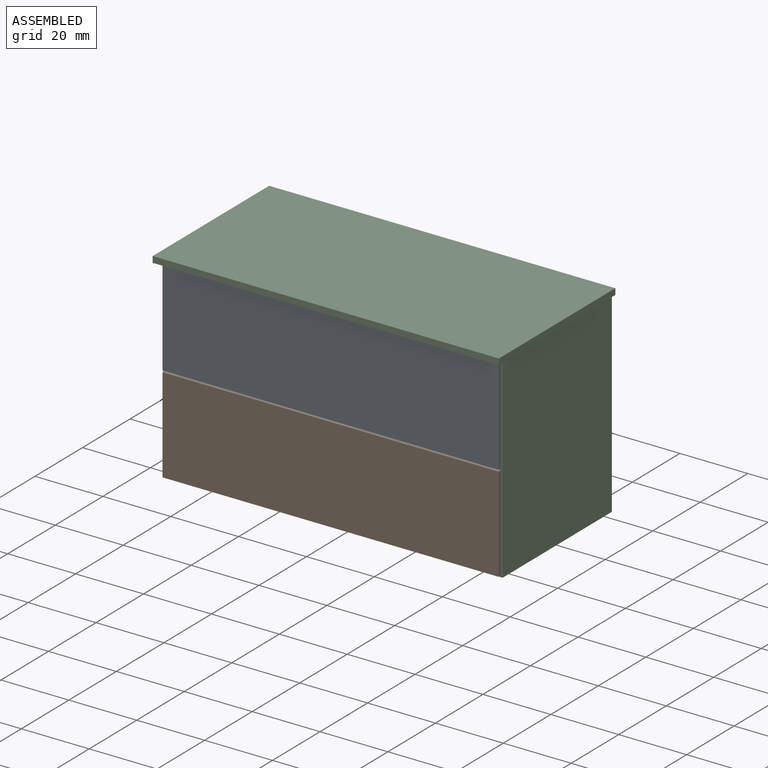
[diagram: assembled view]
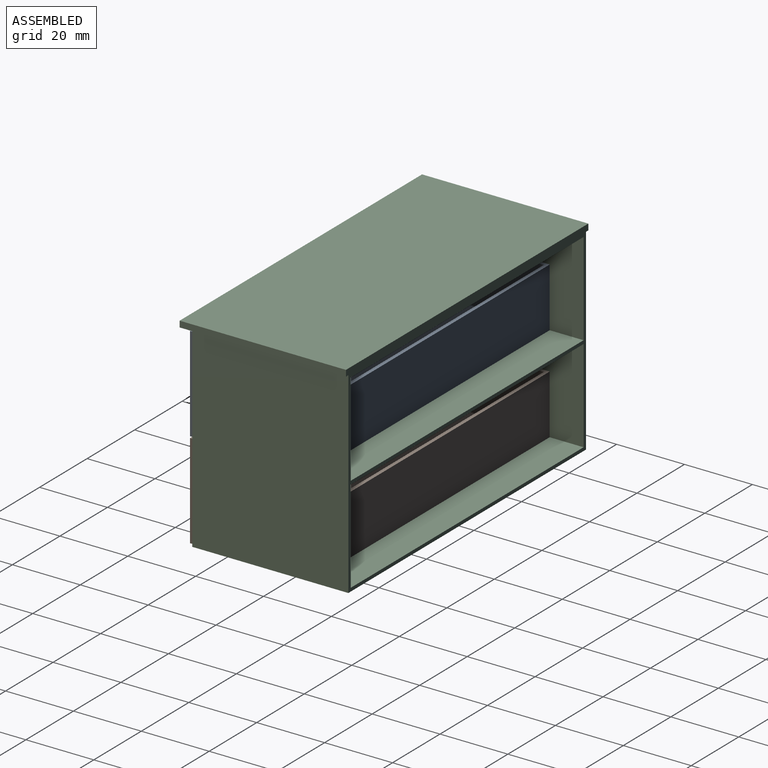
[diagram: assembled view, second angle]
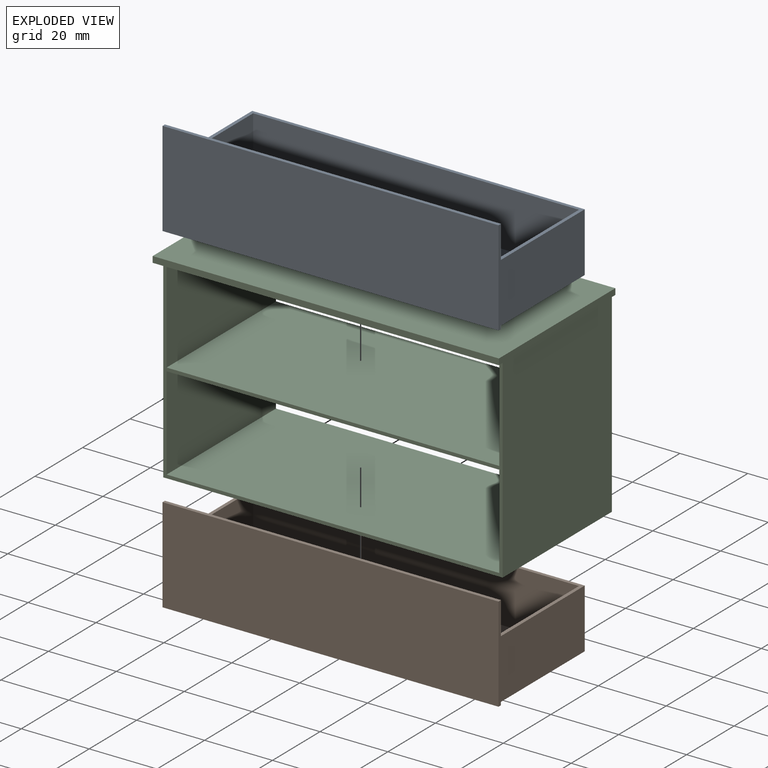
[diagram: exploded view]
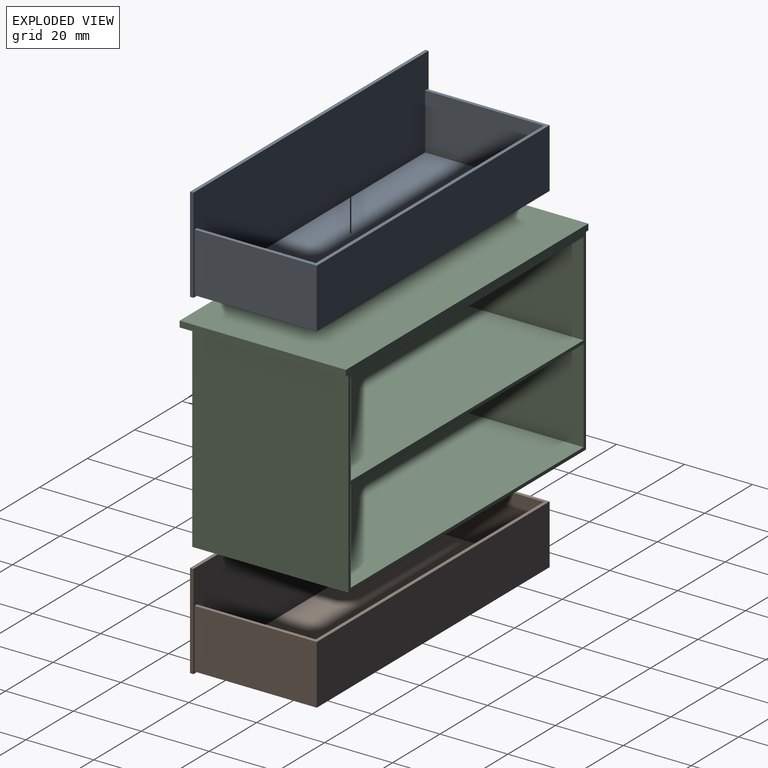
[diagram: exploded view, second angle]
ASSEMBLY  parts=3 mates=2
PART A: 15 faces, bbox 99x37x28 mm
  f0: plane 28x1mm, normal (-1,0,0), area 28mm2, adj f1,f2,f3,f5
  f1: plane 99x1mm, normal (0,0,-1), area 99mm2, adj f0,f3,f4,f5
  f2: plane 99x1mm, normal (0,0,1), area 99mm2, adj f0,f3,f4,f5
  f3: plane 99x28mm, normal (0,-1,0), area 2772mm2, adj f0,f1,f2,f4
  f4: plane 28x1mm, normal (1,0,0), area 28mm2, adj f1,f2,f3,f5
  f5: plane 99x28mm, normal (0,1,0), area 2641mm2, adj f0,f1,f2,f4,f6,f7,f8,f9
  f6: plane 36x17.5mm, normal (1,0,0), area 630mm2, adj f5,f7,f9,f10
  f7: plane 98x36mm, normal (0,0,-1), area 3528mm2, adj f5,f6,f8,f10
  f8: plane 36x17.5mm, normal (-1,0,0), area 630mm2, adj f5,f7,f9,f10
  f9: plane 98x36mm, normal (0,0,1), area 168mm2, adj f5,f6,f8,f10,f11,f13,f14
  f10: plane 98x17.5mm, normal (0,1,0), area 1715mm2, adj f6,f7,f8,f9
  f11: plane 35x16.5mm, normal (-1,0,0), area 577.5mm2, adj f5,f9,f12,f14
  f12: plane 96x35mm, normal (0,0,1), area 3360mm2, adj f5,f11,f13,f14
  f13: plane 35x16.5mm, normal (1,0,0), area 577.5mm2, adj f5,f9,f12,f14
  f14: plane 96x16.5mm, normal (0,-1,0), area 1584mm2, adj f9,f11,f12,f13
PART B: same geometry as A
PART C: 18 faces, bbox 102x49x59.8 mm
  f0: plane 46x27.5mm, normal (-1,0,0), area 1265mm2, adj f7,f8,f9,f17
  f1: plane 46x27.5mm, normal (1,0,0), area 1265mm2, adj f7,f8,f9,f17
  f2: plane 102x49mm, normal (0,0,-1), area 398mm2, adj f3,f5,f6,f7,f8,f13,f15
  f3: plane 49x1.8mm, normal (1,0,0), area 88.2mm2, adj f2,f4,f6,f7
  f4: plane 102x49mm, normal (0,0,1), area 4998mm2, adj f3,f5,f6,f7
  f5: plane 49x1.8mm, normal (-1,0,0), area 88.2mm2, adj f2,f4,f6,f7
  f6: plane 102x1.8mm, normal (0,-1,0), area 183.6mm2, adj f2,f3,f4,f5
  f7: plane 102x59.8mm, normal (0,1,0), area 593.6mm2, adj f0,f1,f2,f3,f4,f5,f9,f10
  f8: plane 100x58mm, normal (0,-1,0), area 410mm2, adj f0,f1,f2,f9,f10,f11,f12,f13
  f9: plane 98x46mm, normal (0,0,-1), area 4508mm2, adj f0,f1,f7,f8
  f10: plane 46x27.5mm, normal (-1,0,0), area 1265mm2, adj f7,f8,f11,f16
  f11: plane 98x46mm, normal (0,0,1), area 4508mm2, adj f7,f8,f10,f12
  f12: plane 46x27.5mm, normal (1,0,0), area 1265mm2, adj f7,f8,f11,f16
  f13: plane 58x46mm, normal (1,0,0), area 2668mm2, adj f2,f7,f8,f14
  f14: plane 100x46mm, normal (0,0,-1), area 4600mm2, adj f7,f8,f13,f15
  f15: plane 58x46mm, normal (-1,0,0), area 2668mm2, adj f2,f7,f8,f14
  f16: plane 98x46mm, normal (0,0,-1), area 4508mm2, adj f7,f8,f10,f12
  f17: plane 98x46mm, normal (0,0,1), area 4508mm2, adj f0,f1,f7,f8
PLACE A t=(0,0,28.5)mm
PLACE B at identity
PLACE C at identity fixed
MATE planar B.f7 <-> C.f11  axis (0,0,-1) through (0,-46,13.2)mm
MATE planar A.f7 <-> C.f17  axis (0,0,-1) through (0,-46,41.7)mm
